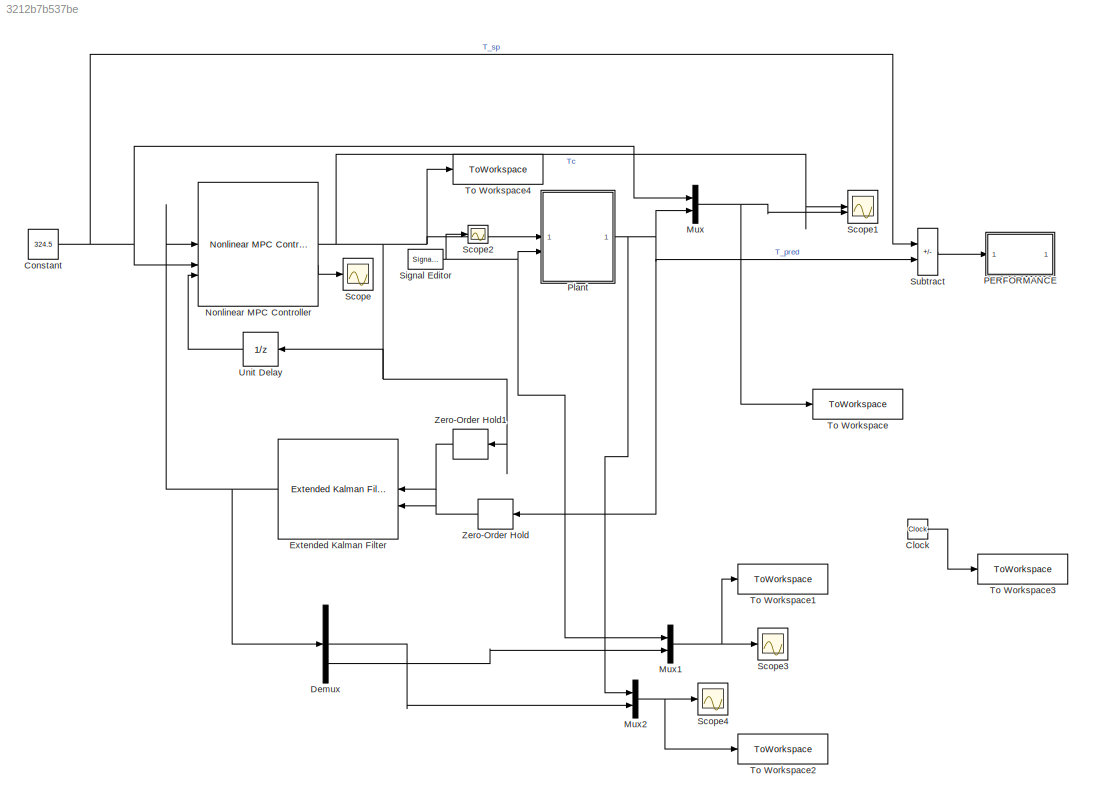
MODEL slx_3212b7b537be
KIND model
CONFIG AbsTol = auto
CONFIG EnableMultiTasking = off
CONFIG FixedStep = auto
CONFIG MaxStep = auto
CONFIG MinStep = auto
CONFIG RelTol = 1e-3
CONFIG SampleTimeConstraint = Unconstrained
CONFIG SolverName = VariableStepAuto
CONFIG StartTime = 0.0
CONFIG StopTime = 30
BLOCK [Clock] Clock
BLOCK [Constant] Constant
  Value = 324.5
BLOCK [Demux] Demux
  Outputs = 3
BLOCK [Reference] Extended Kalman Filter  REF=sharedTrackingLibrary/Extended Kalman Filter
  LibrarySourceBlock = cstblocks/State Estimation/Extended Kalman Filter
  SourceBlock = sharedTrackingLibrary/Extended Kalman Filter
  SourceType = Extended Kalman Filter
BLOCK [Mux] Mux
  DisplayOption = bar
  Inputs = 2
BLOCK [Mux] Mux1
  DisplayOption = bar
  Inputs = 2
BLOCK [Mux] Mux2
  DisplayOption = bar
  Inputs = 2
BLOCK [Reference] Nonlinear MPC Controller  REF=mpclib/Nonlinear MPC Controller  (lib defined in mdl_ae329e0e0455)
  SourceBlock = mpclib/Nonlinear MPC Controller
  SourceType = NonlinearMPC
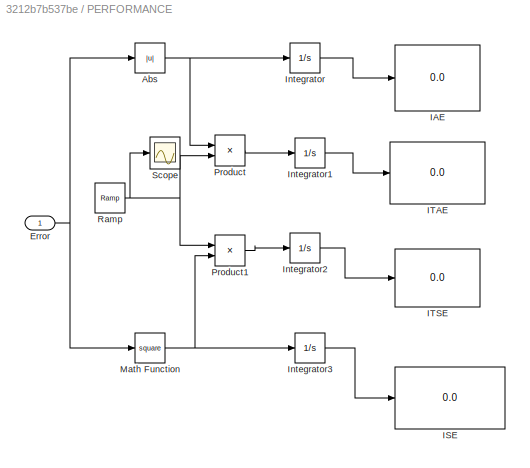
BLOCK [SubSystem] PERFORMANCE
BLOCK [Abs] PERFORMANCE/Abs
  SaturateOnIntegerOverflow = off
BLOCK [Inport] PERFORMANCE/Error
BLOCK [Display] PERFORMANCE/IAE
  Decimation = 1
BLOCK [Display] PERFORMANCE/ISE
  Decimation = 1
BLOCK [Display] PERFORMANCE/ITAE
  Decimation = 1
BLOCK [Display] PERFORMANCE/ITSE
  Decimation = 1
BLOCK [Integrator] PERFORMANCE/Integrator
BLOCK [Integrator] PERFORMANCE/Integrator1
BLOCK [Integrator] PERFORMANCE/Integrator2
BLOCK [Integrator] PERFORMANCE/Integrator3
BLOCK [Math] PERFORMANCE/Math Function
  Operator = square
  SignedPower = on
BLOCK [Product] PERFORMANCE/Product
  RndMeth = Zero
BLOCK [Product] PERFORMANCE/Product1
  RndMeth = Zero
BLOCK [Reference] PERFORMANCE/Ramp  REF=simulink/Sources/Ramp
  SourceBlock = simulink/Sources/Ramp
  SourceType = Ramp
BLOCK [Scope] PERFORMANCE/Scope
  Floating = off
  NumInputPorts = 1
  ScopeSpecificationString = Simulink.scopes.TimeScopeBlockCfg('CurrentConfiguration', extmgr.ConfigurationSet(extmgr.Configuration('Core','General UI',true),extmgr.Configuration('Core','Source UI',true),extmgr.Configuration('Sources','WiredSimulink',true,'DataLoggingLimitDataPoints',true,'DataLoggingSaveFormat','Array','DataLoggingDecimation','1','DataLoggingDecimateData',true),extmgr.Configuration('Visuals','Time Domain',tr...<+878ch>
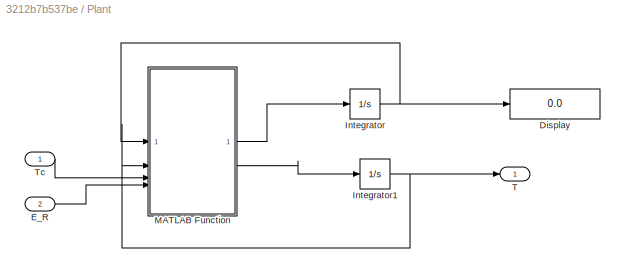
BLOCK [SubSystem] Plant
BLOCK [Display] Plant/Display
  Decimation = 1
BLOCK [Inport] Plant/E_R
  Port = 2
BLOCK [Integrator] Plant/Integrator
BLOCK [Integrator] Plant/Integrator1
  InitialCondition = 300
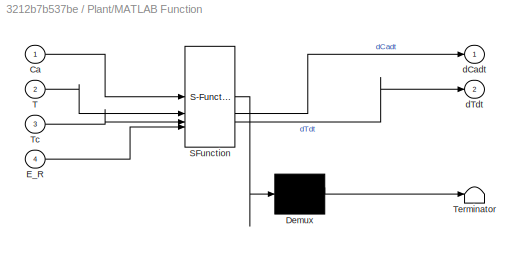
BLOCK [SubSystem] Plant/MATLAB Function
  ErrorFcn = Stateflow.Translate.translate
  PermitHierarchicalResolution = ExplicitOnly
  SFBlockType = MATLAB Function
  TreatAsAtomicUnit = on
BLOCK [Demux] Plant/MATLAB Function/ Demux 
  Outputs = 1
BLOCK [S-Function] Plant/MATLAB Function/ SFunction 
  EnableBusSupport = on
  FunctionName = sf_sfun
  PortCounts = [4 3]
  SFcnIsStateOwnerBlock = off
  SFunctionDeploymentMode = off
  Tag = Stateflow S-Function 2
BLOCK [Terminator] Plant/MATLAB Function/ Terminator 
BLOCK [Inport] Plant/MATLAB Function/Ca
BLOCK [Inport] Plant/MATLAB Function/E_R
  Port = 4
BLOCK [Inport] Plant/MATLAB Function/T
  Port = 2
BLOCK [Inport] Plant/MATLAB Function/Tc
  Port = 3
BLOCK [Outport] Plant/MATLAB Function/dCadt
BLOCK [Outport] Plant/MATLAB Function/dTdt
  Port = 2
BLOCK [Outport] Plant/T
BLOCK [Inport] Plant/Tc
BLOCK [Scope] Scope
  Floating = off
  NumInputPorts = 1
  ScopeSpecificationString = Simulink.scopes.TimeScopeBlockCfg('CurrentConfiguration', extmgr.ConfigurationSet(extmgr.Configuration('Core','General UI',true),extmgr.Configuration('Core','Source UI',true),extmgr.Configuration('Sources','WiredSimulink',true),extmgr.Configuration('Visuals','Time Domain',true,'SerializedDisplays',{struct('MinYLimReal','0.9','MaxYLimReal','1.1','YLabelReal','','MinYLimMag','0.9','MaxYLimMag','1.1'...<+1347ch>
BLOCK [Scope] Scope1
  Floating = off
  NumInputPorts = 2
  ScopeSpecificationString = Simulink.scopes.TimeScopeBlockCfg('CurrentConfiguration', extmgr.ConfigurationSet(extmgr.Configuration('Core','General UI',true,'FigureColor',[1 1 1]),extmgr.Configuration('Core','Source UI',true),extmgr.Configuration('Sources','WiredSimulink',true,'DataLoggingVariableName','ScopeData1'),extmgr.Configuration('Visuals','Time Domain',true,'SerializedDisplays',{struct('MinYLimReal','273.46605','MaxYL...<+2318ch>
BLOCK [Scope] Scope2
  Floating = off
  NumInputPorts = 1
  ScopeSpecificationString = Simulink.scopes.TimeScopeBlockCfg('CurrentConfiguration', extmgr.ConfigurationSet(extmgr.Configuration('Core','General UI',true),extmgr.Configuration('Core','Source UI',true),extmgr.Configuration('Sources','WiredSimulink',true,'DataLoggingVariableName','ScopeData1'),extmgr.Configuration('Visuals','Time Domain',true,'SerializedDisplays',{struct('MinYLimReal','8637.5','MaxYLimReal','8762.5','YLabelR...<+1389ch>
BLOCK [Scope] Scope3
  Floating = off
  NumInputPorts = 1
  ScopeSpecificationString = Simulink.scopes.TimeScopeBlockCfg('CurrentConfiguration', extmgr.ConfigurationSet(extmgr.Configuration('Core','General UI',true),extmgr.Configuration('Core','Source UI',true),extmgr.Configuration('Sources','WiredSimulink',true,'DataLoggingVariableName','ScopeData1'),extmgr.Configuration('Visuals','Time Domain',true,'SerializedDisplays',{struct('MinYLimReal','8622.19209','MaxYLimReal','8806.99894',...<+1410ch>
BLOCK [Scope] Scope4
  Floating = off
  NumInputPorts = 1
  ScopeSpecificationString = Simulink.scopes.TimeScopeBlockCfg('CurrentConfiguration', extmgr.ConfigurationSet(extmgr.Configuration('Core','General UI',true),extmgr.Configuration('Core','Source UI',true),extmgr.Configuration('Sources','WiredSimulink',true,'DataLoggingVariableName','ScopeData2'),extmgr.Configuration('Visuals','Time Domain',true,'SerializedDisplays',{struct('MinYLimReal','296.39384','MaxYLimReal','332.45547','Y...<+1373ch>
BLOCK [Reference] Signal Editor  REF=SignalEditorBlockLib/Signal Editor
  LibrarySourceBlock = simulink/Sources/Signal Editor
  SourceBlock = SignalEditorBlockLib/Signal Editor
  SourceType = SignalEditor
  UserDataPersistent = on
BLOCK [Sum] Subtract
  IconShape = rectangular
  Inputs = +-
BLOCK [ToWorkspace] To Workspace
  FixptAsFi = on
  MaxDataPoints = inf
  SampleTime = Ts
  SaveFormat = Timeseries
  VariableName = T
BLOCK [ToWorkspace] To Workspace1
  FixptAsFi = on
  MaxDataPoints = inf
  SampleTime = Ts
  SaveFormat = Timeseries
  VariableName = est
BLOCK [ToWorkspace] To Workspace2
  FixptAsFi = on
  MaxDataPoints = inf
  SampleTime = Ts
  SaveFormat = Timeseries
  VariableName = E_R
BLOCK [ToWorkspace] To Workspace3
  FixptAsFi = on
  MaxDataPoints = inf
  SampleTime = Ts
  SaveFormat = Timeseries
  VariableName = t_save
BLOCK [ToWorkspace] To Workspace4
  FixptAsFi = on
  MaxDataPoints = inf
  SampleTime = Ts
  SaveFormat = Timeseries
  VariableName = Tc
BLOCK [UnitDelay] Unit Delay
  HasFrameUpgradeWarning = on
  InitialCondition = u0
  SampleTime = Ts
BLOCK [ZeroOrderHold] Zero-Order Hold
  SampleTime = Ts
BLOCK [ZeroOrderHold] Zero-Order Hold1
  SampleTime = Ts
LINE Clock:1 -> To Workspace3:1
NET Constant:1 -> Mux:1, Nonlinear MPC Controller:2, Subtract:1
LINE Demux:2 -> Mux2:2
LINE Demux:3 -> Mux1:2
NET Extended Kalman Filter:1 -> Demux:1, Nonlinear MPC Controller:1
NET Mux1:1 -> Scope3:1, To Workspace1:1
NET Mux2:1 -> Scope4:1, To Workspace2:1
NET Mux:1 -> Scope1:2, To Workspace:1
NET Nonlinear MPC Controller:1 -> Plant:1, Scope1:1, To Workspace4:1, Unit Delay:1, Zero-Order Hold1:1
LINE Nonlinear MPC Controller:2 -> Scope:1
NET PERFORMANCE/Abs:1 -> PERFORMANCE/Integrator:1, PERFORMANCE/Product:1
NET PERFORMANCE/Error:1 -> PERFORMANCE/Abs:1, PERFORMANCE/Math Function:1
LINE PERFORMANCE/Integrator1:1 -> PERFORMANCE/ITAE:1
LINE PERFORMANCE/Integrator2:1 -> PERFORMANCE/ITSE:1
LINE PERFORMANCE/Integrator3:1 -> PERFORMANCE/ISE:1
LINE PERFORMANCE/Integrator:1 -> PERFORMANCE/IAE:1
NET PERFORMANCE/Math Function:1 -> PERFORMANCE/Integrator3:1, PERFORMANCE/Product1:2
LINE PERFORMANCE/Product1:1 -> PERFORMANCE/Integrator2:1
LINE PERFORMANCE/Product:1 -> PERFORMANCE/Integrator1:1
NET PERFORMANCE/Ramp:1 -> PERFORMANCE/Product1:1, PERFORMANCE/Product:2, PERFORMANCE/Scope:1
LINE Plant/E_R:1 -> Plant/MATLAB Function:4
NET Plant/Integrator1:1 -> Plant/MATLAB Function:2, Plant/T:1
NET Plant/Integrator:1 -> Plant/Display:1, Plant/MATLAB Function:1
LINE Plant/MATLAB Function:1 -> Plant/Integrator:1
LINE Plant/MATLAB Function:2 -> Plant/Integrator1:1
LINE Plant/Tc:1 -> Plant/MATLAB Function:3
NET Plant:1 -> Mux2:1, Mux:2, Subtract:2, Zero-Order Hold:1
NET Signal Editor:1 -> Mux1:1, Plant:2, Scope2:1
LINE Subtract:1 -> PERFORMANCE:1
LINE Unit Delay:1 -> Nonlinear MPC Controller:3
LINE Zero-Order Hold1:1 -> Extended Kalman Filter:1
LINE Zero-Order Hold:1 -> Extended Kalman Filter:2
note: NET lines group one-source signal fan-out (src -> all destinations, sorted); 1:1 wires keep LINE
CHART Plant/MATLAB Function states=1 transitions=1
  STATE_LABEL 'eML_blk_kernel()'
  STATE_LABEL 'SCRIPT:\nfunction [dCadt,dTdt] = fcn(Ca,T,Tc,E_R)\n\nvalues = {100,5e4,350,100,1000,0.239,7.2e10,5e4,1};\n[F,delta_H,Tf,V,rho,Cp,k0,U_A,Caf] = values{:};\n\n% Rate constant (Arrhenius equation)\n        k = k0 * exp(-E_R / T);\n        \n        % Mass balance for Ca\n        dCadt = F/V * (Caf - Ca) - k * Ca;\n        \n        % Energy balance for T\n        dTdt = F/V * (Tf - T) + (delta_H / (rho * Cp)) * k...<+49ch>'
CHART  states=0 transitions=0
